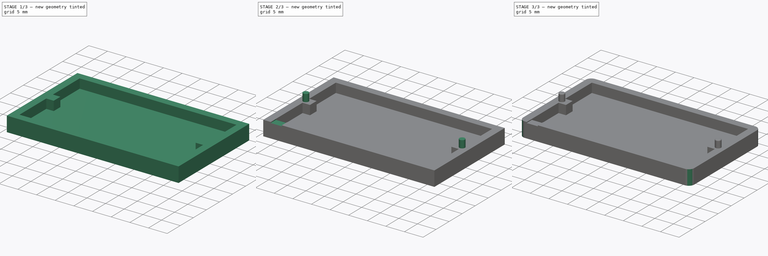
[diagram: build sequence overview — one tinted view per stage of 3, left to right]
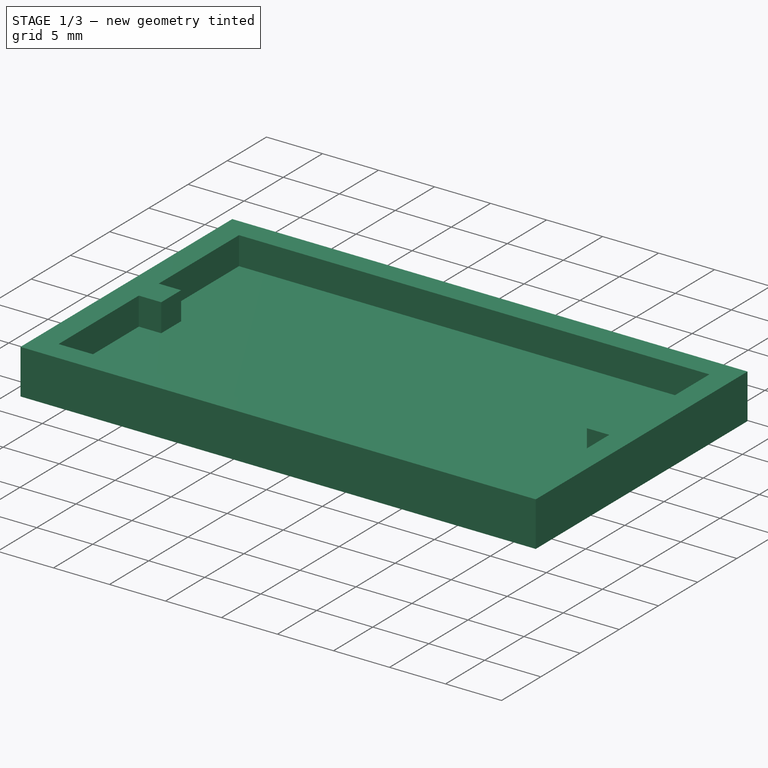
[diagram: stage 1 of 3 — iso view after this stage's code; geometry added in this stage tinted green]
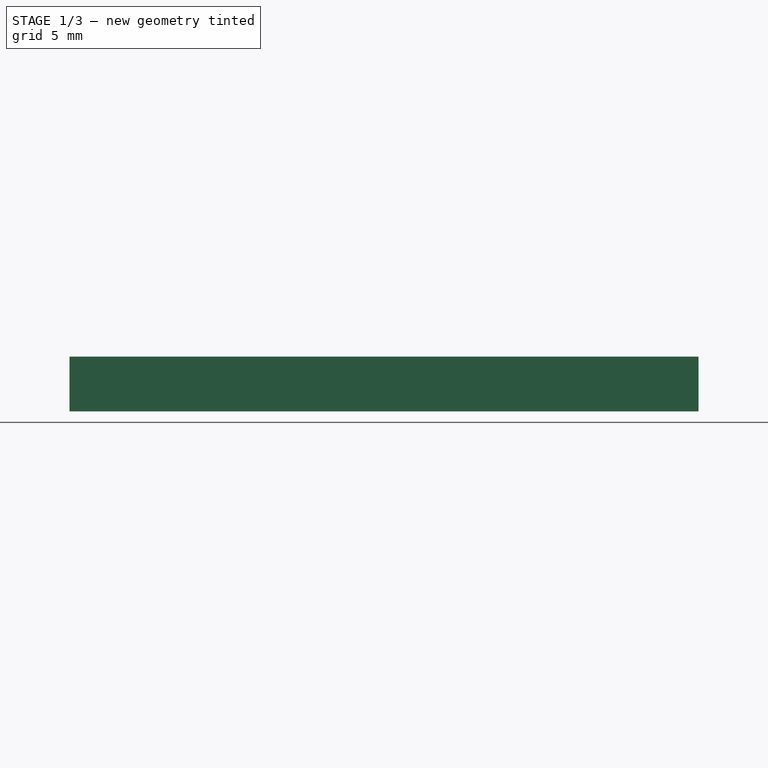
[diagram: stage 1 of 3 — front view after this stage's code; geometry added in this stage tinted green]
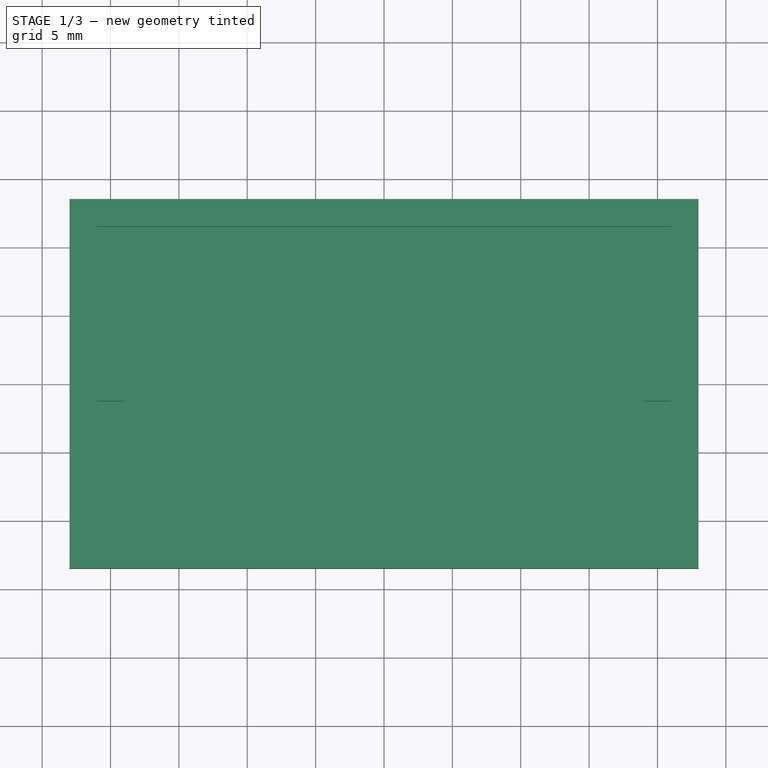
[diagram: stage 1 of 3 — top view after this stage's code; geometry added in this stage tinted green]
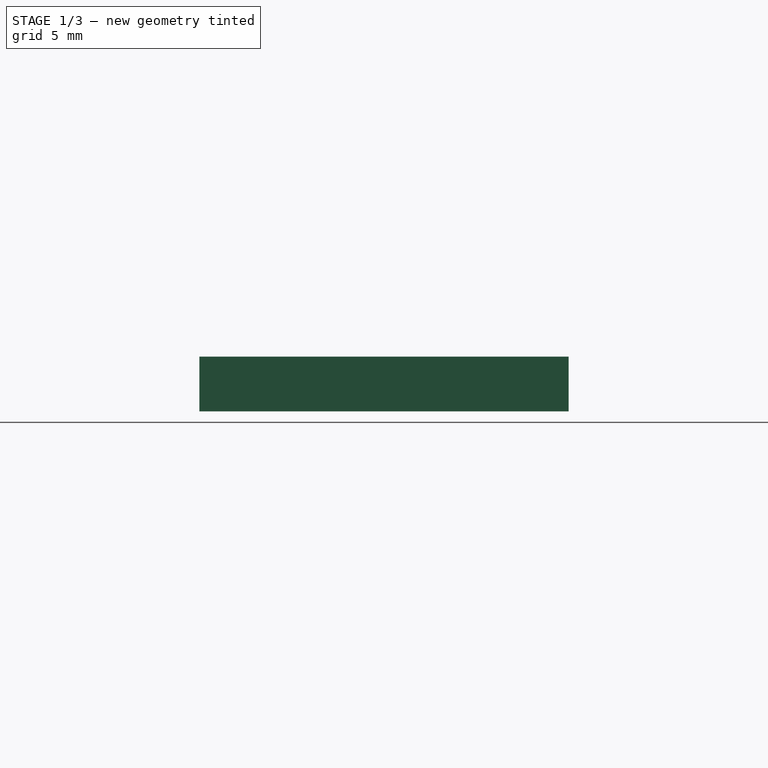
[diagram: stage 1 of 3 — right view after this stage's code; geometry added in this stage tinted green]
FCSTD DOCUMENT  (FreeCAD 0.21R30029 (Git))
Label: Buttom
License: All rights reserved
LicenseURL: http://en.wikipedia.org/wiki/All_rights_reserved
objects: Sketcher::SketchObject×4, PartDesign::Pad×3, PartDesign::Fillet×2, PartDesign::Pocket×1, PartDesign::Body×1
note: 17 computed .brp shape members not serialized (recipe doc carries the construction recipe); baked Part::Feature solids carry a one-line shape summary decoded from their .brp

FEATURE [Sketcher::SketchObject] Sketch
  FullyConstrained = true
  MapMode = 5
  Support = -> [XY_Plane]
  sketch-geometry (24):
    g0: LineSegment StartX=-21 StartY=11.5 StartZ=0 EndX=21 EndY=11.5 EndZ=0
    g1: LineSegment StartX=21 StartY=11.5 StartZ=0 EndX=21 EndY=1.27 EndZ=0
    g2: LineSegment StartX=21 StartY=-11.5 StartZ=0 EndX=-21 EndY=-11.5 EndZ=0
    g3: LineSegment StartX=-21 StartY=-11.5 StartZ=0 EndX=-21 EndY=-1.27 EndZ=0
    g4: LineSegment StartX=-21 StartY=11.5 StartZ=0 EndX=0 EndY=0 EndZ=0
    g5: LineSegment StartX=0 StartY=0 StartZ=0 EndX=21 EndY=11.5 EndZ=0
    g6: LineSegment StartX=21 StartY=-11.5 StartZ=0 EndX=0 EndY=0 EndZ=0
    g7: LineSegment StartX=-23 StartY=13.5 StartZ=0 EndX=23 EndY=13.5 EndZ=0
    g8: LineSegment StartX=23 StartY=13.5 StartZ=0 EndX=23 EndY=-13.5 EndZ=0
    g9: LineSegment StartX=23 StartY=-13.5 StartZ=0 EndX=-23 EndY=-13.5 EndZ=0
    g10: LineSegment StartX=-23 StartY=-13.5 StartZ=0 EndX=-23 EndY=13.5 EndZ=0
    g11: LineSegment StartX=-21 StartY=11.5 StartZ=0 EndX=-23 EndY=13.5 EndZ=0
    g12: LineSegment StartX=21 StartY=11.5 StartZ=0 EndX=23 EndY=13.5 EndZ=0
    g13: LineSegment StartX=21 StartY=-11.5 StartZ=0 EndX=23 EndY=-13.5 EndZ=0
    g14: LineSegment StartX=-21 StartY=1.27 StartZ=0 EndX=-19 EndY=1.27 EndZ=0
    g15: LineSegment StartX=-19 StartY=1.27 StartZ=0 EndX=-19 EndY=-1.27 EndZ=0
    g16: LineSegment StartX=-19 StartY=-1.27 StartZ=0 EndX=-21 EndY=-1.27 EndZ=0
    g17: LineSegment StartX=-21 StartY=1.27 StartZ=0 EndX=-21 EndY=11.5 EndZ=0
    g18: LineSegment StartX=21 StartY=1.27 StartZ=0 EndX=19 EndY=1.27 EndZ=0
    g19: LineSegment StartX=19 StartY=1.27 StartZ=0 EndX=19 EndY=-1.27 EndZ=0
    g20: LineSegment StartX=19 StartY=-1.27 StartZ=0 EndX=21 EndY=-1.27 EndZ=0
    g21: LineSegment StartX=21 StartY=-1.27 StartZ=0 EndX=21 EndY=-11.5 EndZ=0
    g22: LineSegment StartX=19 StartY=1.27 StartZ=0 EndX=-19 EndY=1.27 EndZ=0
    g23: LineSegment StartX=-19 StartY=-1.27 StartZ=0 EndX=19 EndY=-1.27 EndZ=0
  constraints (62):
    c: Coincident(g0,g1)
    c: Coincident(g21,g2)
    c: Coincident(g2,g3)
    c: Coincident(g17,g0)
    c: Horizontal(g0)
    c: Horizontal(g2)
    c: Vertical(g1)
    c: Vertical(g3)
    c: Coincident(g4,g0)
    c: Coincident(g4,g-1)
    c: Coincident(g5,g-1)
    c: Coincident(g5,g0)
    c: Coincident(g6,g21)
    c: Coincident(g6,g-1)
    c: Equal(g5,g6)
    c: Equal(g6,g4)
    c: Coincident(g7,g8)
    c: Coincident(g8,g9)
    c: Coincident(g9,g10)
    c: Coincident(g10,g7)
    c: Horizontal(g7)
    c: Horizontal(g9)
    c: Vertical(g8)
    c: Vertical(g10)
    c: Coincident(g11,g7)
    c: Coincident(g0,g11)
    c: Coincident(g12,g0)
    c: Coincident(g12,g7)
    c: Coincident(g13,g21)
    c: Coincident(g13,g8)
    c: Equal(g13,g12)
    c: Equal(g12,g11)
    c: DistanceY(g11,g11) = 2
    c: DistanceX(g11,g11) = 2
    c: Distance(g0) = 42
    c: Coincident(g14,g15)
    c: Coincident(g15,g16)
    c: Horizontal(g14)
    c: Horizontal(g16)
    c: Vertical(g15)
    c: Coincident(g17,g14)
    c: Tangent(g3,g17)
    c: Coincident(g16,g3)
    c: DistanceY(g2,g0) = 23
    c: Coincident(g18,g19)
    c: Coincident(g19,g20)
    c: Horizontal(g18)
    c: Horizontal(g20)
    c: Vertical(g19)
    c: Coincident(g1,g18)
    c: Tangent(g1,g21)
    c: Coincident(g22,g18)
    c: Coincident(g22,g14)
    c: Horizontal(g22)
    c: Coincident(g23,g15)
    c: Coincident(g23,g19)
    c: Horizontal(g23)
    c: Equal(g18,g14)
    c: Distance(g15) = 2.54
    c: Distance(g16) = 2
    c: Equal(g17,g3)
    c: Coincident(g20,g21)
FEATURE [PartDesign::Pad] Pad
  AllowMultiFace = false
  Direction = (0,0,1)
  Length = 2.5
  Length2 = 100
  Profile = -> Sketch
  Type = 0
FEATURE [Sketcher::SketchObject] Sketch001
  ExternalGeometry = -> [Pad]
  FullyConstrained = true
  MapMode = 5
  Placement = pos=(0,0,0) rot=(1,0,0;3.14159rad)
  Support = -> [Pad]
  sketch-geometry (4):
    g0: LineSegment StartX=-23 StartY=13.5 StartZ=0 EndX=23 EndY=13.5 EndZ=0
    g1: LineSegment StartX=23 StartY=13.5 StartZ=0 EndX=23 EndY=-13.5 EndZ=0
    g2: LineSegment StartX=23 StartY=-13.5 StartZ=0 EndX=-23 EndY=-13.5 EndZ=0
    g3: LineSegment StartX=-23 StartY=-13.5 StartZ=0 EndX=-23 EndY=13.5 EndZ=0
  constraints (10):
    c: Coincident(g0,g1)
    c: Coincident(g1,g2)
    c: Coincident(g2,g3)
    c: Coincident(g3,g0)
    c: Horizontal(g0)
    c: Horizontal(g2)
    c: Vertical(g1)
    c: Vertical(g3)
    c: Coincident(g0,g-3)
    c: Coincident(g1,g-4)
FEATURE [PartDesign::Pad] Pad001
  AllowMultiFace = false
  BaseFeature = -> Pad
  Direction = (0,0,-1)
  Length = 1.5
  Length2 = 100
  Profile = -> Sketch001
  Type = 0
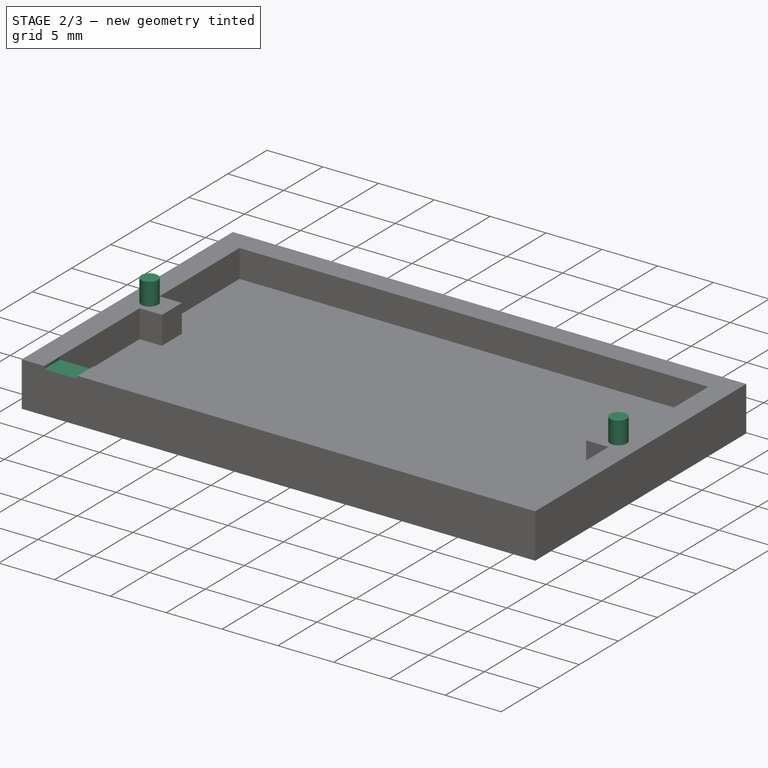
[diagram: stage 2 of 3 — iso view after this stage's code; geometry added in this stage tinted green]
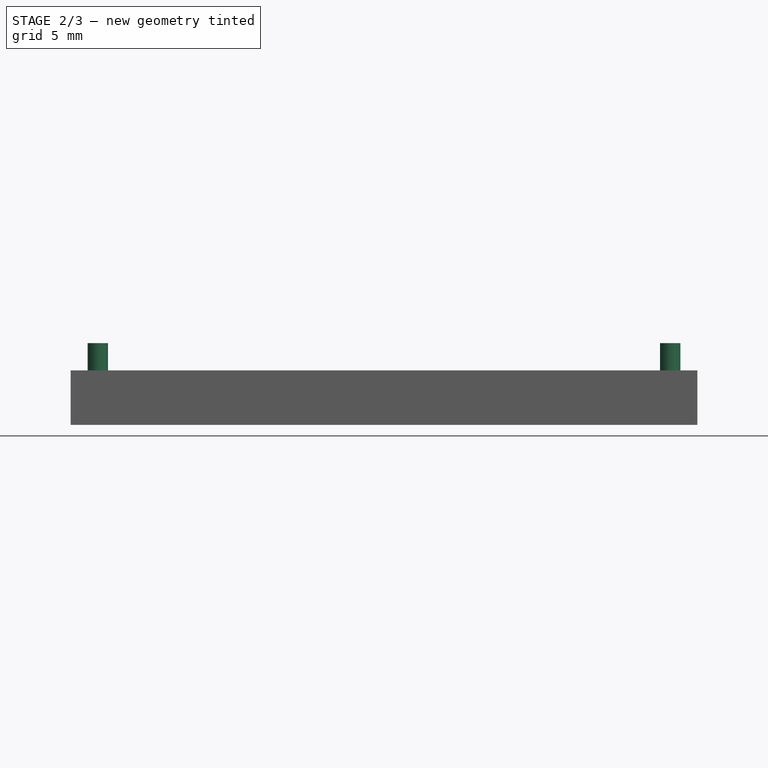
[diagram: stage 2 of 3 — front view after this stage's code; geometry added in this stage tinted green]
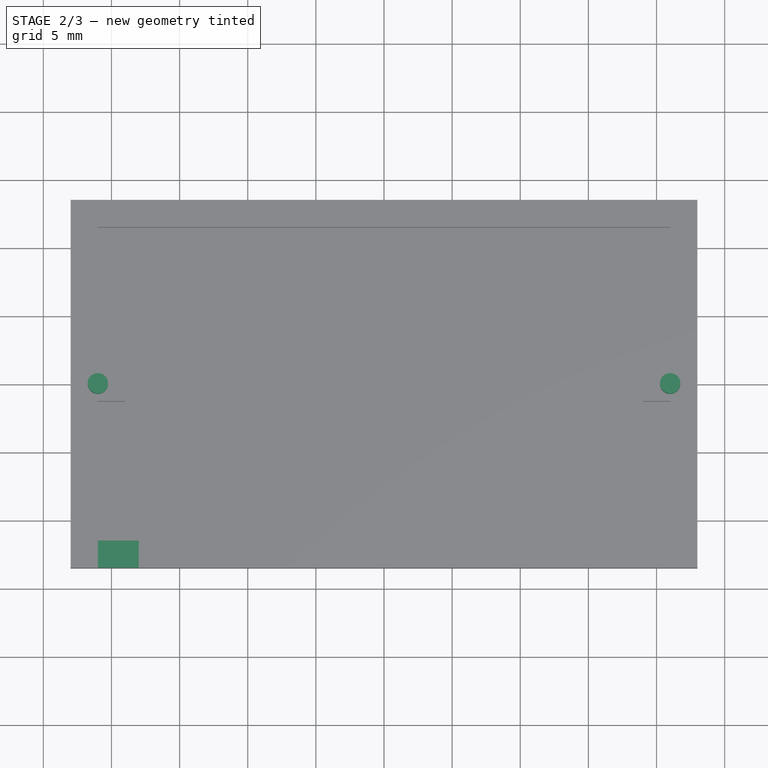
[diagram: stage 2 of 3 — top view after this stage's code; geometry added in this stage tinted green]
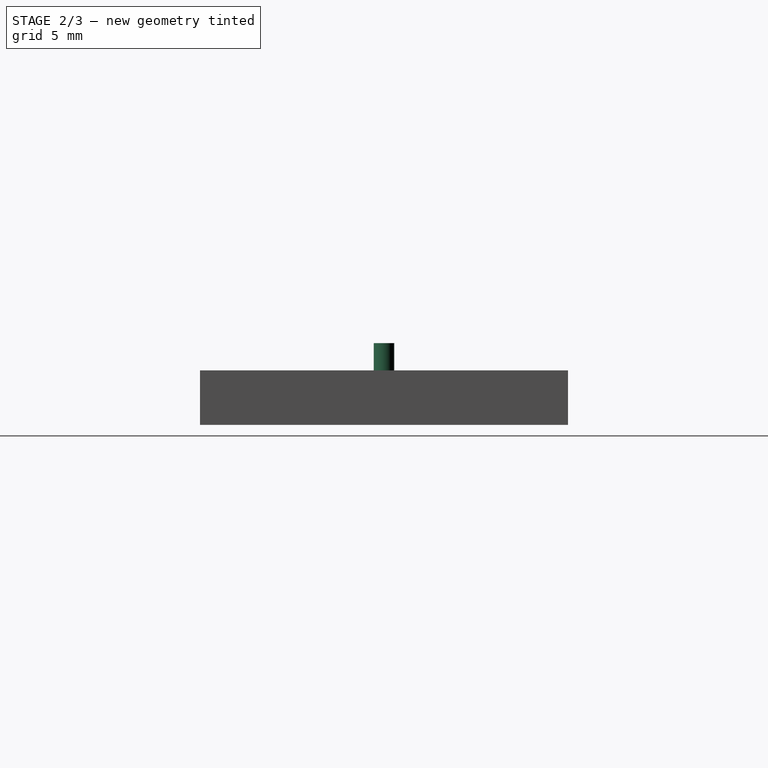
[diagram: stage 2 of 3 — right view after this stage's code; geometry added in this stage tinted green]
FEATURE [Sketcher::SketchObject] Sketch002
  ExternalGeometry = -> [Pad001]
  FullyConstrained = true
  MapMode = 5
  Placement = pos=(0,0,2.5) rot=(0,0,1;0rad)
  Support = -> [Pad001]
  sketch-geometry (4):
    g0: Circle CenterX=-21 CenterY=0 CenterZ=0 NormalX=0 NormalY=0 NormalZ=1 AngleXU=0 Radius=0.75
    g1: LineSegment StartX=-21 StartY=1.27 StartZ=0 EndX=-21 EndY=0 EndZ=0
    g2: LineSegment StartX=21 StartY=1.27 StartZ=0 EndX=21 EndY=0 EndZ=0
    g3: Circle CenterX=21 CenterY=0 CenterZ=0 NormalX=0 NormalY=0 NormalZ=1 AngleXU=0 Radius=0.75
  constraints (10):
    c: PointOnObject(g0,g-1)
    c: Diameter(g0) = 1.5
    c: Coincident(g1,g-3)
    c: Coincident(g1,g0)
    c: Vertical(g1)
    c: Coincident(g2,g-6)
    c: Coincident(g3,g2)
    c: PointOnObject(g3,g-1)
    c: Vertical(g2)
    c: Equal(g3,g0)
FEATURE [PartDesign::Pad] Pad002
  AllowMultiFace = false
  BaseFeature = -> Pad001
  Direction = (0,0,1)
  Length = 2
  Length2 = 100
  Profile = -> Sketch002
  Type = 0
FEATURE [Sketcher::SketchObject] Sketch003
  FullyConstrained = false
  MapMode = 5
  Placement = pos=(0,0,2.5) rot=(0,0,1;0rad)
  sketch-geometry (4):
    g0: LineSegment StartX=-21 StartY=-11.5 StartZ=0 EndX=-18 EndY=-11.5 EndZ=0
    g1: LineSegment StartX=-18 StartY=-11.5 StartZ=0 EndX=-18 EndY=-13.5 EndZ=0
    g2: LineSegment StartX=-18 StartY=-13.5 StartZ=0 EndX=-21 EndY=-13.5 EndZ=0
    g3: LineSegment StartX=-21 StartY=-13.5 StartZ=0 EndX=-21 EndY=-11.5 EndZ=0
  constraints (9):
    c: Coincident(g0,g1)
    c: Coincident(g1,g2)
    c: Coincident(g2,g3)
    c: Coincident(g3,g0)
    c: Horizontal(g0)
    c: Horizontal(g2)
    c: Vertical(g1)
    c: Vertical(g3)
    c: Distance(g2) = 3
FEATURE [PartDesign::Pocket] Pocket
  AllowMultiFace = false
  BaseFeature = -> Pad002
  Direction = (0,0,-1)
  Length = 0.25
  Length2 = 100
  Profile = -> Sketch003
  Type = 0
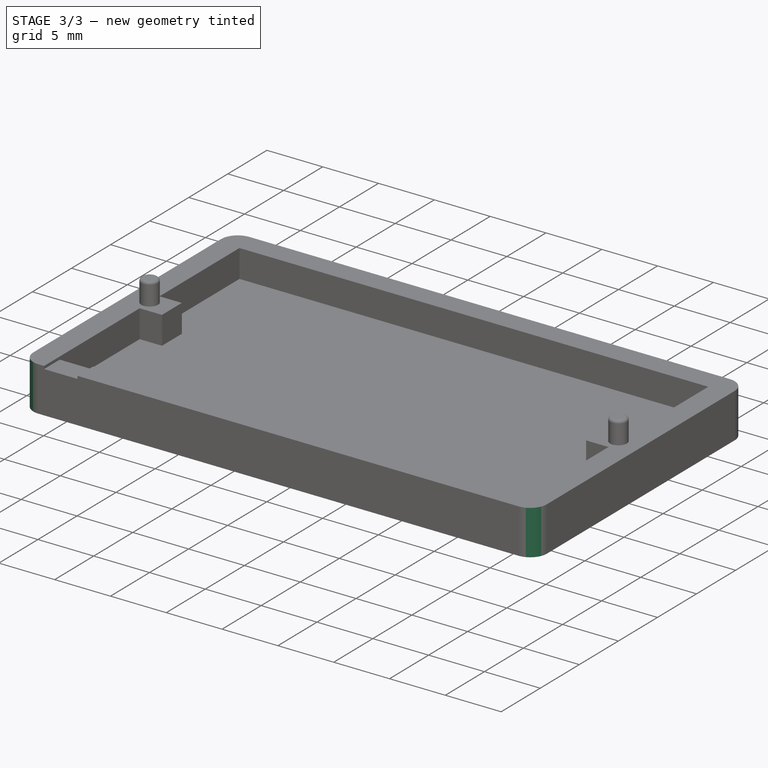
[diagram: stage 3 of 3 — iso view after this stage's code; geometry added in this stage tinted green]
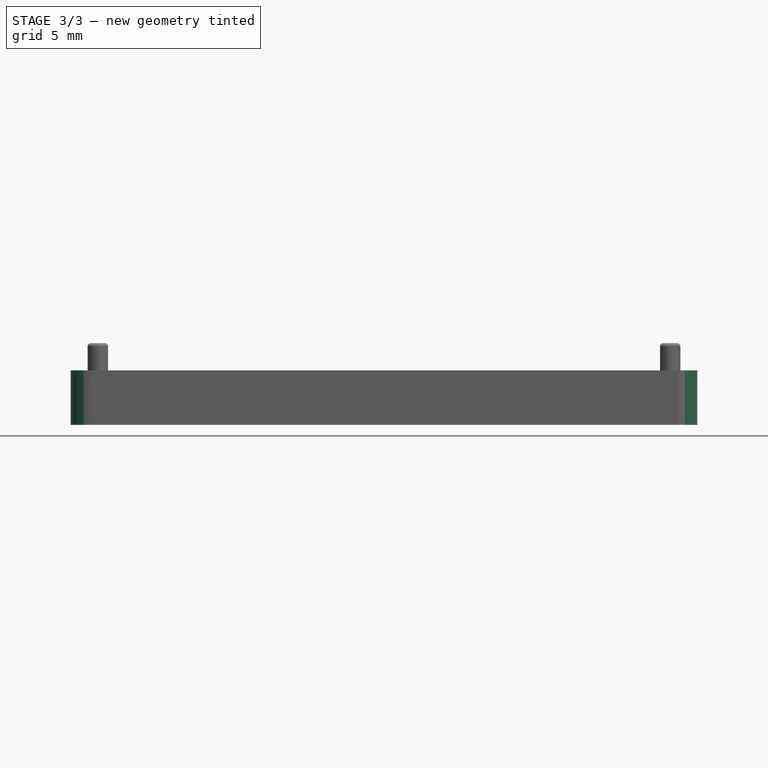
[diagram: stage 3 of 3 — front view after this stage's code; geometry added in this stage tinted green]
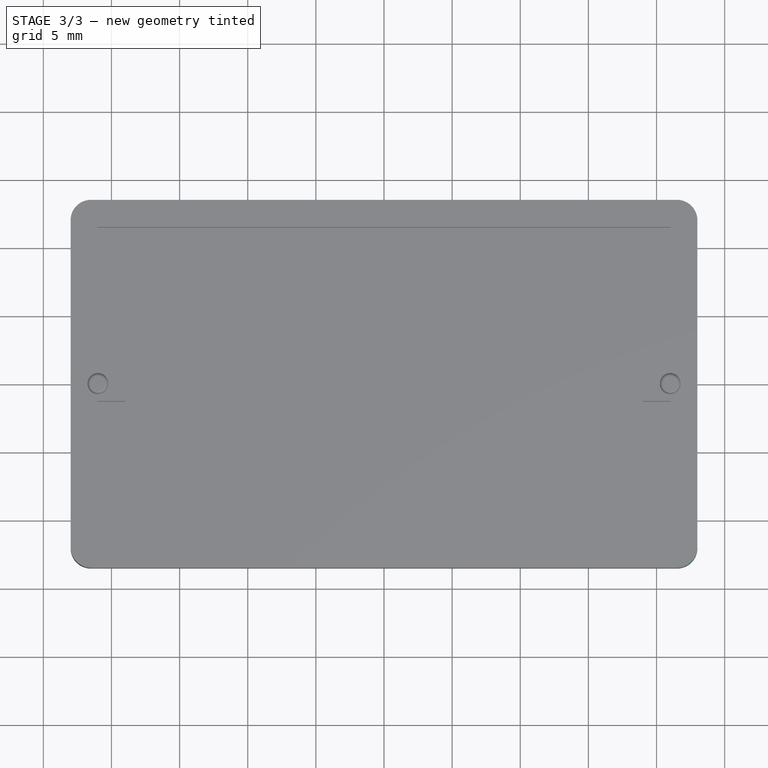
[diagram: stage 3 of 3 — top view after this stage's code; geometry added in this stage tinted green]
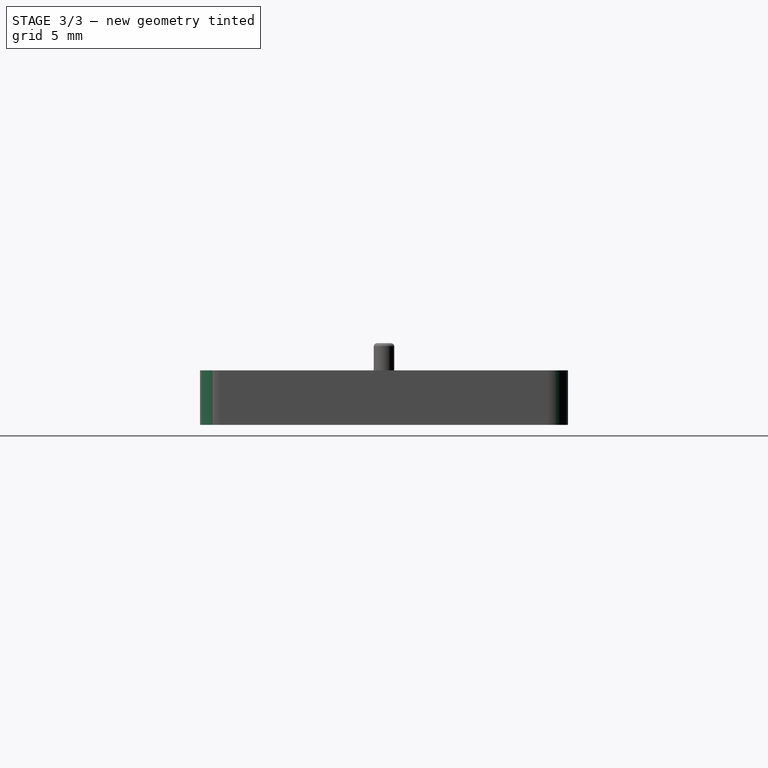
[diagram: stage 3 of 3 — right view after this stage's code; geometry added in this stage tinted green]
FEATURE [PartDesign::Fillet] Fillet
  Base = -> Pocket [Edge71,Edge73]
  BaseFeature = -> Pocket
  Radius = 0.25
  SupportTransform = false
  UseAllEdges = false
FEATURE [PartDesign::Fillet] Fillet001
  Base = -> Fillet [Edge26,Edge33,Edge27,Edge63]
  BaseFeature = -> Fillet
  Radius = 1.5
  SupportTransform = false
  UseAllEdges = false
FEATURE [PartDesign::Body] Body
  Group = -> [Sketch,Pad,Sketch001,Pad001,Sketch002,Pad002,Pocket,Sketch003,Fillet,Fillet001]
  Origin = -> Origin
  Tip = -> Fillet001
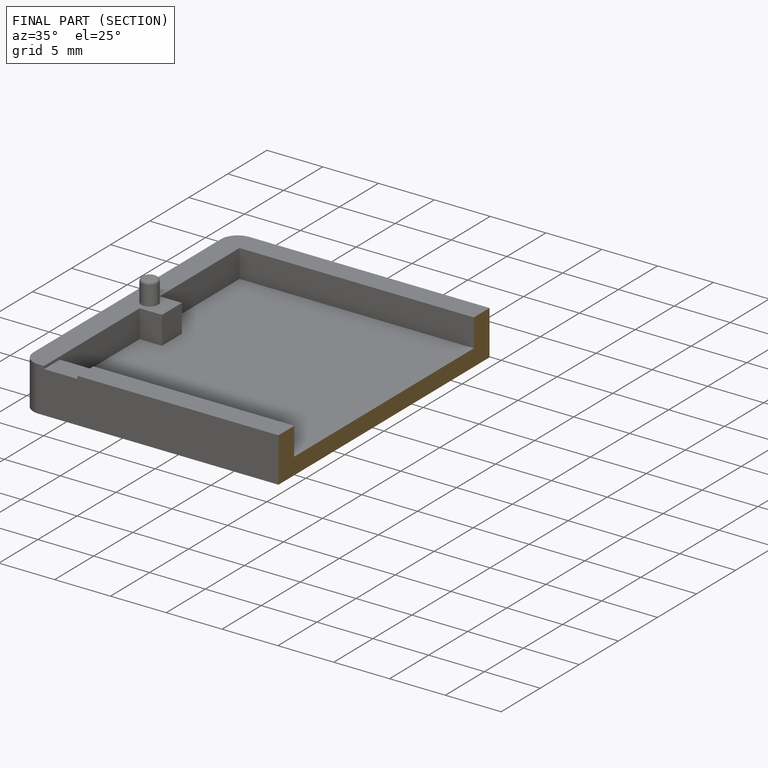
[diagram: finished part — half-section view (interior)]
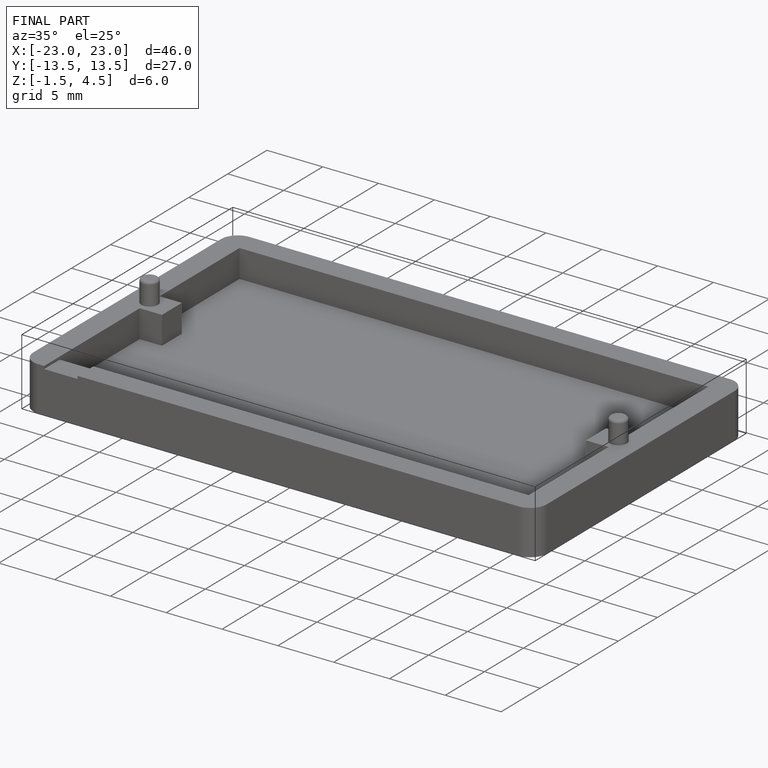
[diagram: finished part — iso view with bounding-box wireframe]
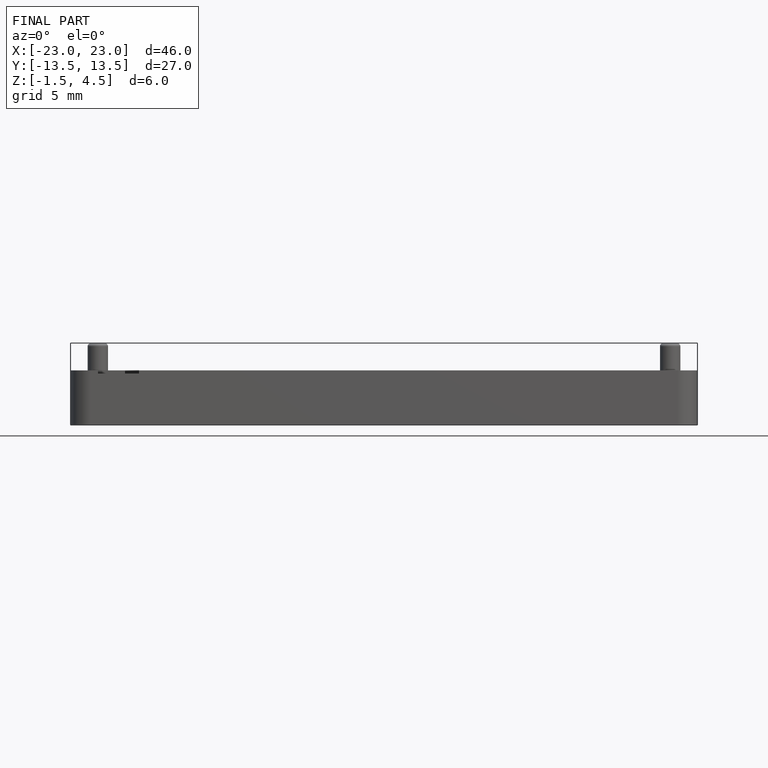
[diagram: finished part — front view with bounding-box wireframe]
